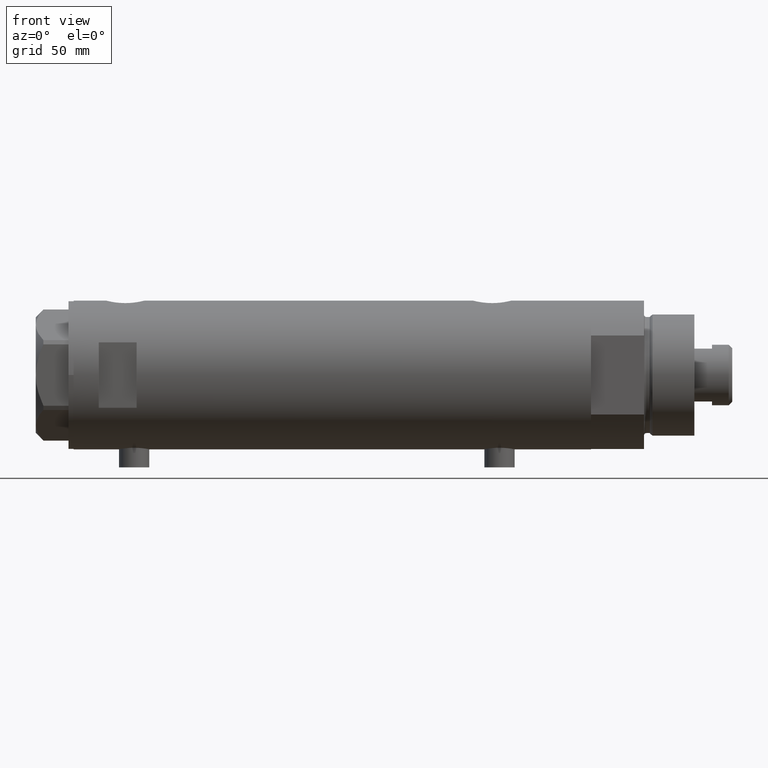
[diagram: clean part render]
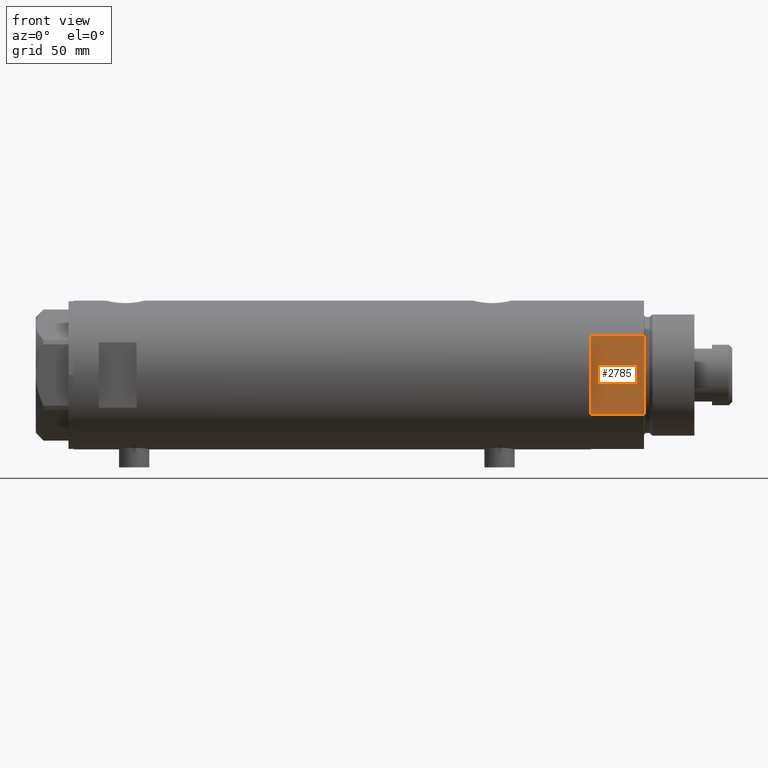
[diagram: same view with one face highlighted and labeled with its STEP entity id]
A machine part, front view. The second image highlights one B-rep face of the part: STEP entity #2785.
In plain terms, the highlighted planar face has unit normal (-0, 1, 0).
Its self-contained STEP definition (entity closure, byte-faithful):
#332 = CARTESIAN_POINT ( 'NONE',  ( -15.66045976336583401, -25.00000000000000000, 0.000000000000000000 ) ) ;
#344 = EDGE_CURVE ( 'NONE', #597, #3342, #3854, .T. ) ;
#371 = LINE ( 'NONE', #3836, #4441 ) ;
#394 = ORIENTED_EDGE ( 'NONE', *, *, #344, .F. ) ;
#486 = EDGE_CURVE ( 'NONE', #2552, #597, #4457, .T. ) ;
#495 = EDGE_CURVE ( 'NONE', #4351, #3046, #3790, .T. ) ;
#524 = DIRECTION ( 'NONE',  ( 0.000000000000000000, -0.000000000000000000, 1.000000000000000000 ) ) ;
#596 = ORIENTED_EDGE ( 'NONE', *, *, #3756, .T. ) ;
#597 = VERTEX_POINT ( 'NONE', #702 ) ;
#665 = CARTESIAN_POINT ( 'NONE',  ( -15.66045976336583401, -25.00000000000000000, 0.000000000000000000 ) ) ;
#691 = CARTESIAN_POINT ( 'NONE',  ( -15.66045976336583401, -25.00000000000000000, 21.00000000000000000 ) ) ;
#702 = CARTESIAN_POINT ( 'NONE',  ( 7.141428428542853091, -25.00000000000000000, 0.000000000000000000 ) ) ;
#730 = DIRECTION ( 'NONE',  ( -0.000000000000000000, -0.000000000000000000, 1.000000000000000000 ) ) ;
#755 = VECTOR ( 'NONE', #955, 1000.000000000000000 ) ;
#872 = CARTESIAN_POINT ( 'NONE',  ( -7.141428428542853091, -25.00000000000000000, 0.000000000000000000 ) ) ;
#955 = DIRECTION ( 'NONE',  ( -1.000000000000000000, -0.000000000000000000, -0.000000000000000000 ) ) ;
#1111 = VECTOR ( 'NONE', #3113, 1000.000000000000000 ) ;
#1146 = ORIENTED_EDGE ( 'NONE', *, *, #3976, .F. ) ;
#1618 = PLANE ( 'NONE',  #1764 ) ;
#1764 = AXIS2_PLACEMENT_3D ( 'NONE', #665, #2936, #524 ) ;
#2005 = ORIENTED_EDGE ( 'NONE', *, *, #3197, .F. ) ;
#2121 = CARTESIAN_POINT ( 'NONE',  ( -15.66045976336582690, -25.00000000000000000, 0.000000000000000000 ) ) ;
#2131 = VECTOR ( 'NONE', #4143, 1000.000000000000000 ) ;
#2311 = VECTOR ( 'NONE', #730, 1000.000000000000000 ) ;
#2478 = ORIENTED_EDGE ( 'NONE', *, *, #495, .T. ) ;
#2552 = VERTEX_POINT ( 'NONE', #2989 ) ;
#2785 = ADVANCED_FACE ( 'NONE', ( #3998 ), #1618, .F. ) ;
#2794 = CARTESIAN_POINT ( 'NONE',  ( 15.66045976336583401, -25.00000000000000000, 0.000000000000000000 ) ) ;
#2819 = ORIENTED_EDGE ( 'NONE', *, *, #486, .F. ) ;
#2830 = CARTESIAN_POINT ( 'NONE',  ( 15.66045976336583045, -25.00000000000000000, 21.00000000000000355 ) ) ;
#2855 = CARTESIAN_POINT ( 'NONE',  ( -15.66045976336583401, -25.00000000000000000, 0.000000000000000000 ) ) ;
#2877 = LINE ( 'NONE', #4291, #3817 ) ;
#2936 = DIRECTION ( 'NONE',  ( -0.000000000000000000, 1.000000000000000000, 0.000000000000000000 ) ) ;
#2956 = CARTESIAN_POINT ( 'NONE',  ( -15.66045976336583045, -24.99999999999999645, 20.99999999999999645 ) ) ;
#2989 = CARTESIAN_POINT ( 'NONE',  ( 15.66045976336583401, -25.00000000000000000, 0.000000000000000000 ) ) ;
#3046 = VERTEX_POINT ( 'NONE', #2956 ) ;
#3113 = DIRECTION ( 'NONE',  ( -1.000000000000000000, -0.000000000000000000, -0.000000000000000000 ) ) ;
#3197 = EDGE_CURVE ( 'NONE', #3342, #3292, #371, .T. ) ;
#3221 = DIRECTION ( 'NONE',  ( -0.000000000000000000, -0.000000000000000000, 1.000000000000000000 ) ) ;
#3292 = VERTEX_POINT ( 'NONE', #2121 ) ;
#3342 = VERTEX_POINT ( 'NONE', #872 ) ;
#3457 = DIRECTION ( 'NONE',  ( -1.000000000000000000, -0.000000000000000000, -0.000000000000000000 ) ) ;
#3748 = EDGE_LOOP ( 'NONE', ( #2478, #1146, #2005, #394, #2819, #596 ) ) ;
#3756 = EDGE_CURVE ( 'NONE', #2552, #4351, #3759, .T. ) ;
#3759 = LINE ( 'NONE', #2794, #2311 ) ;
#3790 = LINE ( 'NONE', #691, #755 ) ;
#3817 = VECTOR ( 'NONE', #3221, 1000.000000000000000 ) ;
#3836 = CARTESIAN_POINT ( 'NONE',  ( -15.66045976336583401, -25.00000000000000000, 0.000000000000000000 ) ) ;
#3854 = LINE ( 'NONE', #2855, #2131 ) ;
#3976 = EDGE_CURVE ( 'NONE', #3292, #3046, #2877, .T. ) ;
#3998 = FACE_OUTER_BOUND ( 'NONE', #3748, .T. ) ;
#4143 = DIRECTION ( 'NONE',  ( -1.000000000000000000, -0.000000000000000000, -0.000000000000000000 ) ) ;
#4291 = CARTESIAN_POINT ( 'NONE',  ( -15.66045976336583401, -25.00000000000000000, 0.000000000000000000 ) ) ;
#4351 = VERTEX_POINT ( 'NONE', #2830 ) ;
#4441 = VECTOR ( 'NONE', #3457, 1000.000000000000000 ) ;
#4457 = LINE ( 'NONE', #332, #1111 ) ;